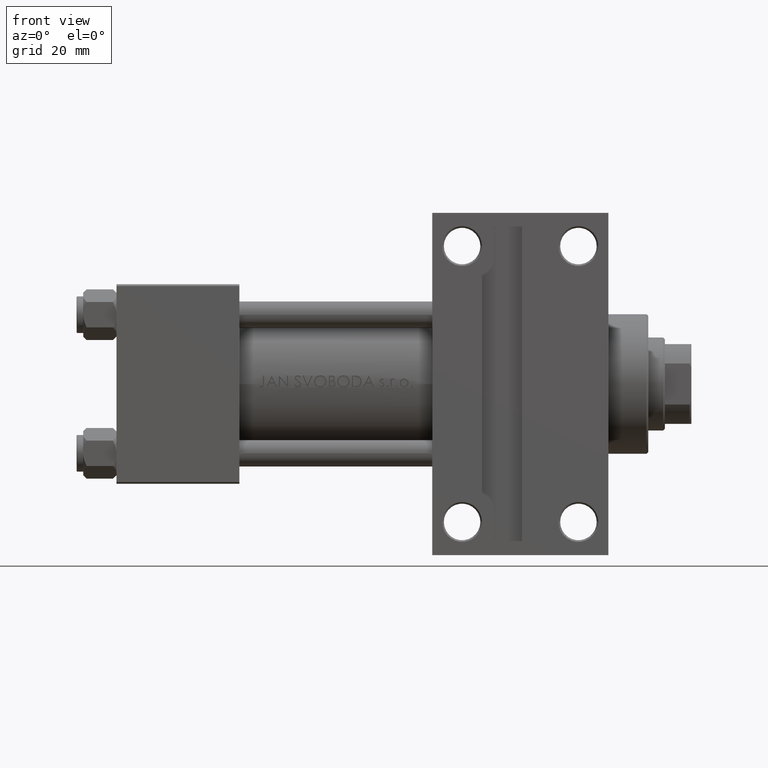
[diagram: clean part render]
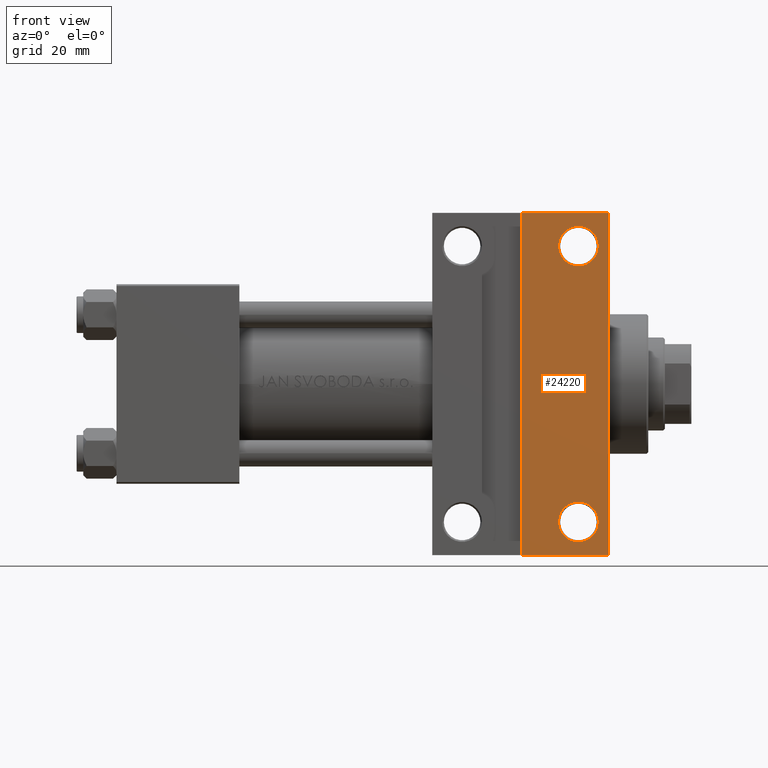
[diagram: same view with one face highlighted and labeled with its STEP entity id]
A machine part, front view. The second image highlights one B-rep face of the part: STEP entity #24220.
In plain terms, the highlighted planar face has unit normal (0, -1, -0).
Its self-contained STEP definition (entity closure, byte-faithful):
#36 = EDGE_CURVE ( 'NONE', #1108, #13778, #31103, .T. ) ;
#253 = EDGE_CURVE ( 'NONE', #2794, #19870, #10324, .T. ) ;
#696 = DIRECTION ( 'NONE',  ( 0.000000000000000000, -1.000000000000000000, -1.156482317317871478E-16 ) ) ;
#1108 = VERTEX_POINT ( 'NONE', #24051 ) ;
#1406 = AXIS2_PLACEMENT_3D ( 'NONE', #28372, #13808, #43417 ) ;
#1420 = ORIENTED_EDGE ( 'NONE', *, *, #41326, .F. ) ;
#1507 = DIRECTION ( 'NONE',  ( -1.000000000000000000, -0.000000000000000000, -0.000000000000000000 ) ) ;
#1691 = DIRECTION ( 'NONE',  ( 0.000000000000000000, 1.000000000000000000, 0.000000000000000000 ) ) ;
#2794 = VERTEX_POINT ( 'NONE', #14118 ) ;
#4490 = DIRECTION ( 'NONE',  ( 0.000000000000000000, 1.000000000000000000, 0.000000000000000000 ) ) ;
#5444 = FACE_BOUND ( 'NONE', #9645, .T. ) ;
#7634 = LINE ( 'NONE', #26865, #45657 ) ;
#7886 = VECTOR ( 'NONE', #1507, 1000.000000000000000 ) ;
#8468 = CARTESIAN_POINT ( 'NONE',  ( 121.9999999999999858, 51.50000000000000711, -29.99999999999999645 ) ) ;
#8675 = CARTESIAN_POINT ( 'NONE',  ( 138.9999999999999432, -41.50000000000000000, -30.00000000000000000 ) ) ;
#9165 = VECTOR ( 'NONE', #9701, 1000.000000000000000 ) ;
#9429 = DIRECTION ( 'NONE',  ( 0.000000000000000000, 1.000000000000000000, 0.000000000000000000 ) ) ;
#9645 = EDGE_LOOP ( 'NONE', ( #14399, #30045 ) ) ;
#9701 = DIRECTION ( 'NONE',  ( -0.000000000000000000, -1.000000000000000000, -0.000000000000000000 ) ) ;
#10324 = CIRCLE ( 'NONE', #37900, 5.999499999999962974 ) ;
#11199 = CARTESIAN_POINT ( 'NONE',  ( 121.9999999999999858, -51.49999999999999289, -29.99999999999999645 ) ) ;
#11570 = DIRECTION ( 'NONE',  ( 1.000000000000000000, -2.618450529776313247E-16, 0.000000000000000000 ) ) ;
#12150 = DIRECTION ( 'NONE',  ( -0.000000000000000000, -1.156482317317871478E-16, 1.000000000000000000 ) ) ;
#13322 = PLANE ( 'NONE',  #1406 ) ;
#13778 = VERTEX_POINT ( 'NONE', #11199 ) ;
#13789 = CARTESIAN_POINT ( 'NONE',  ( 133.0004999999999598, -41.50000000000000000, -30.00000000000000000 ) ) ;
#13808 = DIRECTION ( 'NONE',  ( 0.000000000000000000, 1.156482317317871478E-16, -1.000000000000000000 ) ) ;
#13941 = ORIENTED_EDGE ( 'NONE', *, *, #21333, .T. ) ;
#14118 = CARTESIAN_POINT ( 'NONE',  ( 133.0004999999999882, 41.50000000000000000, -29.99999999999999289 ) ) ;
#14399 = ORIENTED_EDGE ( 'NONE', *, *, #16265, .T. ) ;
#15120 = EDGE_LOOP ( 'NONE', ( #1420, #35697, #13941, #26937 ) ) ;
#16265 = EDGE_CURVE ( 'NONE', #17493, #23784, #42915, .T. ) ;
#17023 = FACE_OUTER_BOUND ( 'NONE', #15120, .T. ) ;
#17230 = ORIENTED_EDGE ( 'NONE', *, *, #20799, .T. ) ;
#17493 = VERTEX_POINT ( 'NONE', #13789 ) ;
#17945 = CARTESIAN_POINT ( 'NONE',  ( 144.9994999999999266, 41.50000000000000000, -29.99999999999999289 ) ) ;
#18077 = AXIS2_PLACEMENT_3D ( 'NONE', #21025, #42984, #9429 ) ;
#19334 = VERTEX_POINT ( 'NONE', #8468 ) ;
#19667 = CIRCLE ( 'NONE', #18077, 5.999499999999990507 ) ;
#19870 = VERTEX_POINT ( 'NONE', #17945 ) ;
#20013 = CARTESIAN_POINT ( 'NONE',  ( 94.99999999999998579, -51.50000000000000711, -29.99999999999999645 ) ) ;
#20171 = LINE ( 'NONE', #34731, #32817 ) ;
#20799 = EDGE_CURVE ( 'NONE', #19870, #2794, #30439, .T. ) ;
#21025 = CARTESIAN_POINT ( 'NONE',  ( 138.9999999999999432, -41.50000000000000000, -30.00000000000000000 ) ) ;
#21333 = EDGE_CURVE ( 'NONE', #35992, #1108, #20171, .T. ) ;
#23242 = DIRECTION ( 'NONE',  ( -0.000000000000000000, -1.156482317317871478E-16, 1.000000000000000000 ) ) ;
#23784 = VERTEX_POINT ( 'NONE', #28916 ) ;
#24051 = CARTESIAN_POINT ( 'NONE',  ( 148.0000000000000000, -51.50000000000000711, -29.99999999999999645 ) ) ;
#24220 = ADVANCED_FACE ( 'NONE', ( #17023, #5444, #47110 ), #13322, .T. ) ;
#26865 = CARTESIAN_POINT ( 'NONE',  ( 95.00000000000000000, 51.50000000000000711, -29.99999999999999645 ) ) ;
#26937 = ORIENTED_EDGE ( 'NONE', *, *, #36, .T. ) ;
#27334 = DIRECTION ( 'NONE',  ( -0.000000000000000000, -1.156482317317871478E-16, 1.000000000000000000 ) ) ;
#27603 = ORIENTED_EDGE ( 'NONE', *, *, #253, .T. ) ;
#28372 = CARTESIAN_POINT ( 'NONE',  ( 148.0000000000000000, 30.00000000000000000, -29.99999999999999289 ) ) ;
#28732 = EDGE_CURVE ( 'NONE', #23784, #17493, #19667, .T. ) ;
#28916 = CARTESIAN_POINT ( 'NONE',  ( 144.9994999999999550, -41.50000000000000000, -30.00000000000000000 ) ) ;
#30045 = ORIENTED_EDGE ( 'NONE', *, *, #28732, .T. ) ;
#30439 = CIRCLE ( 'NONE', #32035, 5.999499999999962974 ) ;
#31103 = LINE ( 'NONE', #20013, #7886 ) ;
#32035 = AXIS2_PLACEMENT_3D ( 'NONE', #34601, #12150, #42244 ) ;
#32397 = LINE ( 'NONE', #32895, #9165 ) ;
#32817 = VECTOR ( 'NONE', #696, 1000.000000000000000 ) ;
#32895 = CARTESIAN_POINT ( 'NONE',  ( 121.9999999999999858, -51.49999999999999289, -29.99999999999999645 ) ) ;
#34601 = CARTESIAN_POINT ( 'NONE',  ( 138.9999999999999432, 41.50000000000000000, -29.99999999999999289 ) ) ;
#34731 = CARTESIAN_POINT ( 'NONE',  ( 148.0000000000000000, 30.00000000000000000, -29.99999999999999289 ) ) ;
#35484 = CARTESIAN_POINT ( 'NONE',  ( 138.9999999999999432, 41.50000000000000000, -29.99999999999999289 ) ) ;
#35697 = ORIENTED_EDGE ( 'NONE', *, *, #46623, .T. ) ;
#35992 = VERTEX_POINT ( 'NONE', #38182 ) ;
#37900 = AXIS2_PLACEMENT_3D ( 'NONE', #35484, #27334, #1691 ) ;
#38182 = CARTESIAN_POINT ( 'NONE',  ( 148.0000000000000000, 51.49999999999999289, -29.99999999999999645 ) ) ;
#41326 = EDGE_CURVE ( 'NONE', #19334, #13778, #32397, .T. ) ;
#42244 = DIRECTION ( 'NONE',  ( 0.000000000000000000, 1.000000000000000000, 0.000000000000000000 ) ) ;
#42915 = CIRCLE ( 'NONE', #46021, 5.999499999999990507 ) ;
#42984 = DIRECTION ( 'NONE',  ( -0.000000000000000000, -1.156482317317871478E-16, 1.000000000000000000 ) ) ;
#43417 = DIRECTION ( 'NONE',  ( 0.000000000000000000, 1.000000000000000000, 1.156482317317871478E-16 ) ) ;
#45657 = VECTOR ( 'NONE', #11570, 1000.000000000000000 ) ;
#46021 = AXIS2_PLACEMENT_3D ( 'NONE', #8675, #23242, #4490 ) ;
#46623 = EDGE_CURVE ( 'NONE', #19334, #35992, #7634, .T. ) ;
#46735 = EDGE_LOOP ( 'NONE', ( #27603, #17230 ) ) ;
#47110 = FACE_BOUND ( 'NONE', #46735, .T. ) ;